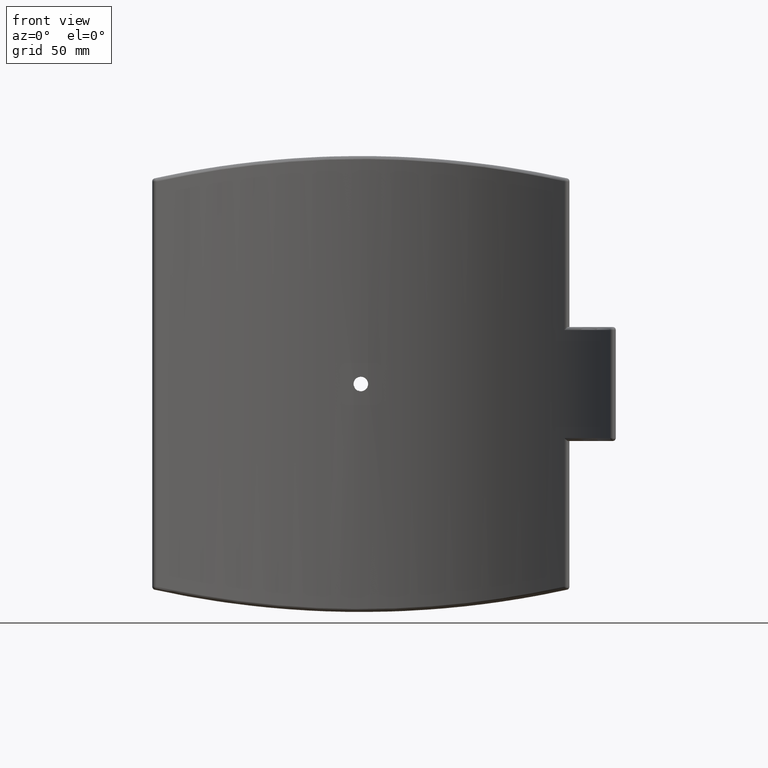
[diagram: clean part render]
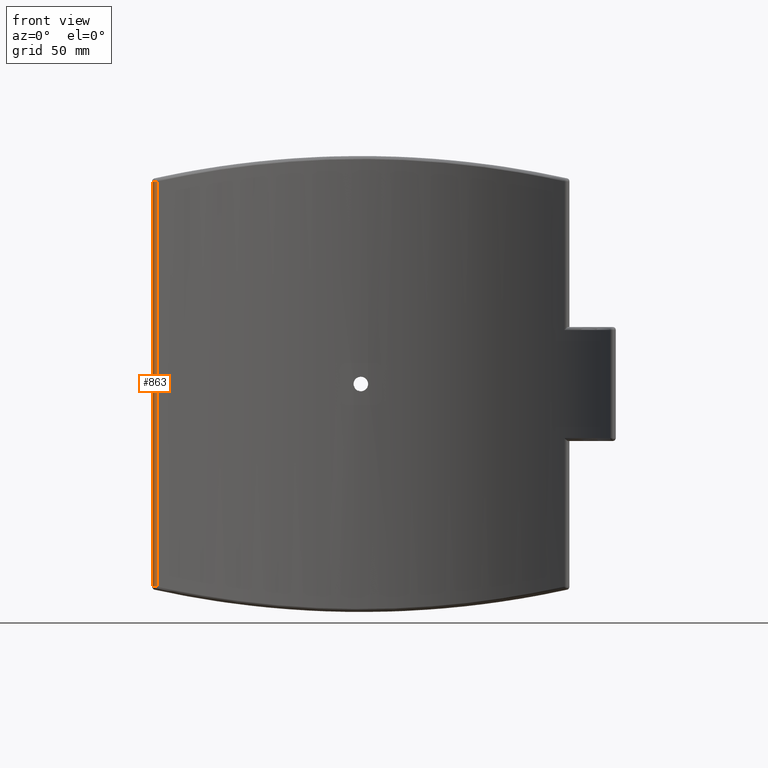
[diagram: same view with one face highlighted and labeled with its STEP entity id]
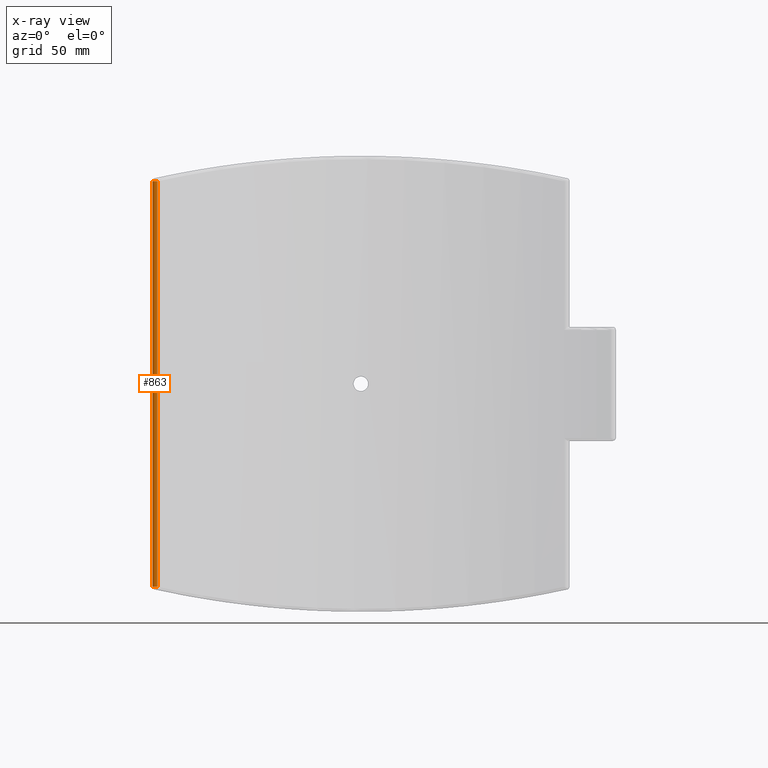
[diagram: x-ray of the same camera — body ghosted, the highlighted face saturated]
A machine part, front view. The second image highlights one B-rep face of the part: STEP entity #863.
The next image is the same camera in x-ray: the body ghosted, the highlighted face saturated — about 0% of this face is hidden behind the body in this view.
In plain terms, the highlighted cylindrical surface (edge-blend (fillet) strip) has radius 2 mm, axis along (0, 0, 1).
Its self-contained STEP definition (entity closure, byte-faithful):
#47=LINE('',#2102,#77);
#48=LINE('',#2103,#78);
#77=VECTOR('',#1232,266.784009754194);
#78=VECTOR('',#1233,266.784009754194);
#133=CYLINDRICAL_SURFACE('',#985,2.);
#226=FACE_OUTER_BOUND('',#313,.T.);
#313=EDGE_LOOP('',(#724,#725,#726,#727));
#366=CIRCLE('',#943,1.99999999999998);
#377=CIRCLE('',#960,2.);
#438=VERTEX_POINT('',#1860);
#440=VERTEX_POINT('',#1863);
#448=VERTEX_POINT('',#1890);
#449=VERTEX_POINT('',#1891);
#516=EDGE_CURVE('',#440,#438,#366,.F.);
#529=EDGE_CURVE('',#448,#449,#377,.F.);
#560=EDGE_CURVE('',#449,#440,#47,.T.);
#561=EDGE_CURVE('',#438,#448,#48,.T.);
#724=ORIENTED_EDGE('',*,*,#529,.T.);
#725=ORIENTED_EDGE('',*,*,#560,.T.);
#726=ORIENTED_EDGE('',*,*,#516,.T.);
#727=ORIENTED_EDGE('',*,*,#561,.T.);
#863=ADVANCED_FACE('',(#226),#133,.T.);
#943=AXIS2_PLACEMENT_3D('',#1864,#1133,#1134);
#960=AXIS2_PLACEMENT_3D('',#1892,#1169,#1170);
#985=AXIS2_PLACEMENT_3D('',#2101,#1230,#1231);
#1133=DIRECTION('center_axis',(0.,5.9788819198971E-14,-1.));
#1134=DIRECTION('ref_axis',(-1.,0.,0.));
#1169=DIRECTION('center_axis',(-5.32907051820082E-14,-4.80382443365994E-14,
1.));
#1170=DIRECTION('ref_axis',(0.669554455445544,-0.742762971070194,0.));
#1230=DIRECTION('center_axis',(0.,0.,1.));
#1231=DIRECTION('ref_axis',(-0.406476041455351,-0.913661440426807,0.));
#1232=DIRECTION('',(0.,0.,-1.));
#1233=DIRECTION('',(0.,0.,1.));
#1860=CARTESIAN_POINT('',(-133.910891089109,148.552594214039,-133.392004877097));
#1863=CARTESIAN_POINT('',(-137.25,150.038120156179,-133.392004877097));
#1864=CARTESIAN_POINT('Origin',(-135.25,150.038120156179,-133.392004877097));
#1890=CARTESIAN_POINT('',(-133.910891089109,148.552594214039,133.392004877097));
#1891=CARTESIAN_POINT('',(-137.25,150.038120156179,133.392004877097));
#1892=CARTESIAN_POINT('Origin',(-135.25,150.038120156179,133.392004877097));
#2101=CARTESIAN_POINT('Origin',(-135.25,150.038120156179,0.));
#2102=CARTESIAN_POINT('',(-137.25,150.038120156179,0.));
#2103=CARTESIAN_POINT('',(-133.910891089109,148.552594214039,0.));